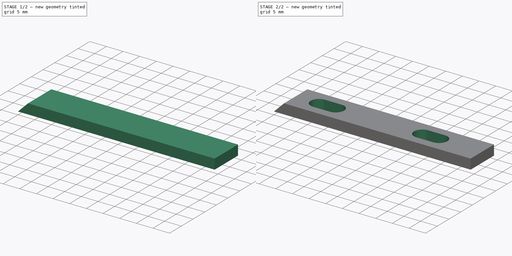
[diagram: build sequence overview — one tinted view per stage of 2, left to right]
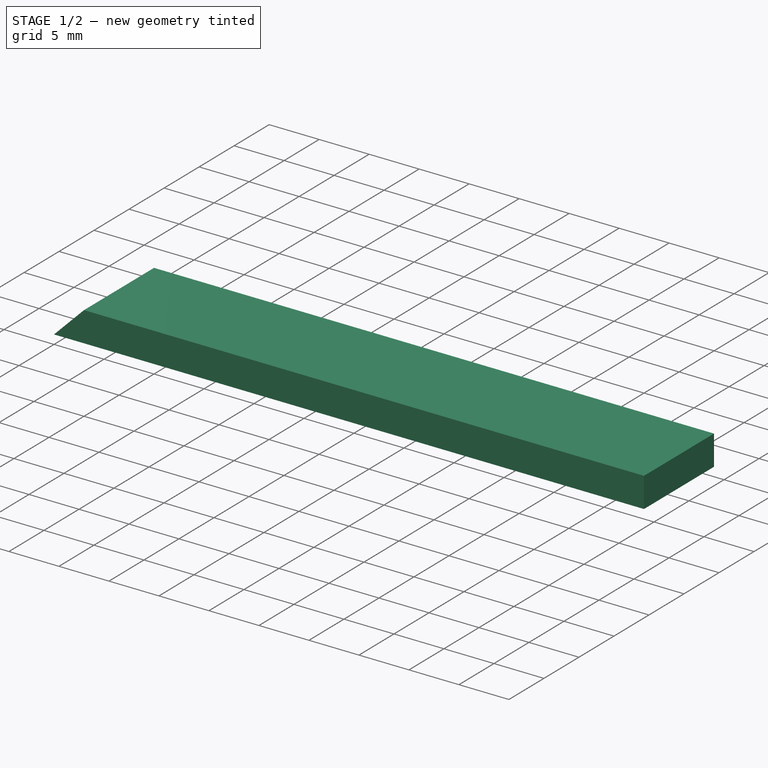
[diagram: stage 1 of 2 — iso view after this stage's code; geometry added in this stage tinted green]
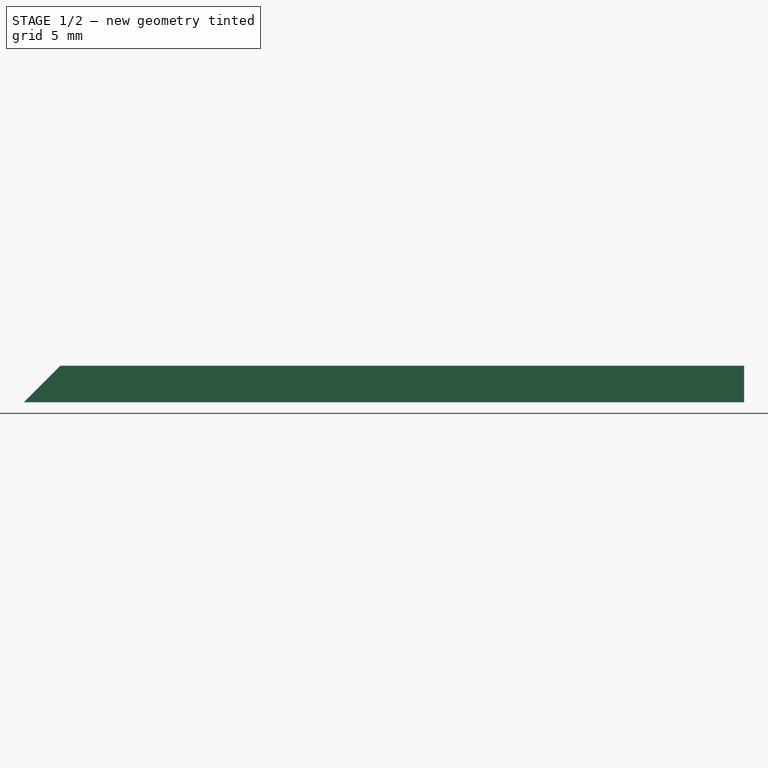
[diagram: stage 1 of 2 — front view after this stage's code; geometry added in this stage tinted green]
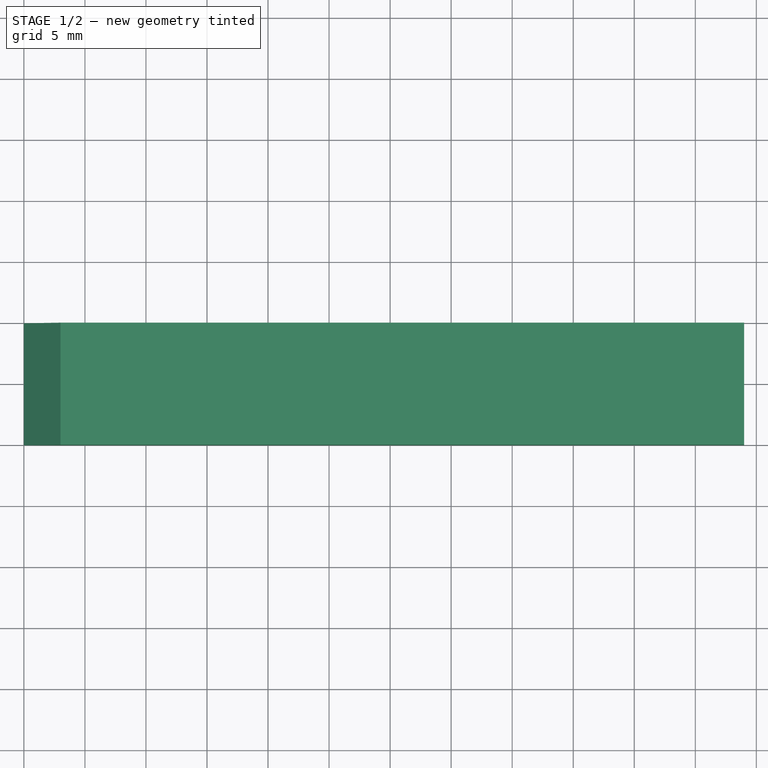
[diagram: stage 1 of 2 — top view after this stage's code; geometry added in this stage tinted green]
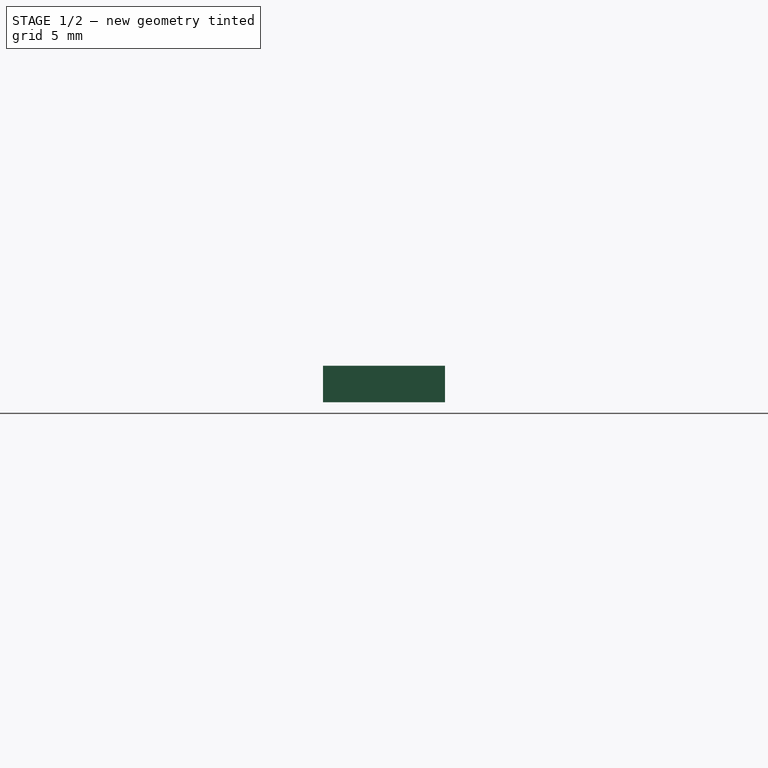
[diagram: stage 1 of 2 — right view after this stage's code; geometry added in this stage tinted green]
FCSTD DOCUMENT  (FreeCAD 0.19R24276 (Git))
Label: Nemo23_support_flour
License: All rights reserved
LicenseURL: http://en.wikipedia.org/wiki/All_rights_reserved
objects: Sketcher::SketchObject×3, PartDesign::Pocket×2, PartDesign::Pad×1, PartDesign::Body×1
note: 10 computed .brp shape members not serialized (recipe doc carries the construction recipe); baked Part::Feature solids carry a one-line shape summary decoded from their .brp

FEATURE [Sketcher::SketchObject] Sketch
  FullyConstrained = true
  MapMode = 5
  Support = -> [XY_Plane]
  sketch-geometry (4):
    g0: LineSegment StartX=5.94579e-10 StartY=10 StartZ=0 EndX=59 EndY=10 EndZ=0
    g1: LineSegment StartX=59 StartY=10 StartZ=0 EndX=59 EndY=0 EndZ=0
    g2: LineSegment StartX=59 StartY=0 StartZ=0 EndX=0 EndY=0 EndZ=0
    g3: LineSegment StartX=0 StartY=0 StartZ=0 EndX=5.94579e-10 EndY=10 EndZ=0
  constraints (11):
    c: Coincident(g0,g1)
    c: Coincident(g1,g2)
    c: Horizontal(g0)
    c: Horizontal(g2)
    c: Vertical(g1)
    c: Coincident(g2,g-1)
    c: DistanceY(g1,g1) = 10
    c: Coincident(g3,g2)
    c: Angle(g2,g3) = 1.5708
    c: Coincident(g0,g3)
    c: DistanceX(g2,g2) = 59
FEATURE [PartDesign::Pad] Pad
  Direction = (1,1,1)
  Length = 3
  Length2 = 100
  Profile = -> Sketch
  Type = 0
FEATURE [Sketcher::SketchObject] Sketch001
  FullyConstrained = true
  MapMode = 5
  Placement = pos=(0,0,0) rot=(1,0,0;1.5708rad)
  Support = -> [Pad]
  sketch-geometry (3):
    g0: LineSegment StartX=0 StartY=0 StartZ=0 EndX=3 EndY=3 EndZ=0
    g1: LineSegment StartX=0 StartY=0 StartZ=0 EndX=0 EndY=3 EndZ=0
    g2: LineSegment StartX=0 StartY=3 StartZ=0 EndX=3 EndY=3 EndZ=0
  constraints (8):
    c: Coincident(g0,g-1)
    c: Coincident(g1,g0)
    c: Horizontal(g2)
    c: Coincident(g0,g2)
    c: Coincident(g1,g2)
    c: DistanceY(g1,g1) = 3
    c: DistanceX(g2,g2) = 3
    c: Vertical(g1)
FEATURE [PartDesign::Pocket] Pocket
  BaseFeature = -> Pad
  Length = 5
  Length2 = 100
  Profile = -> Sketch001
  Type = 1
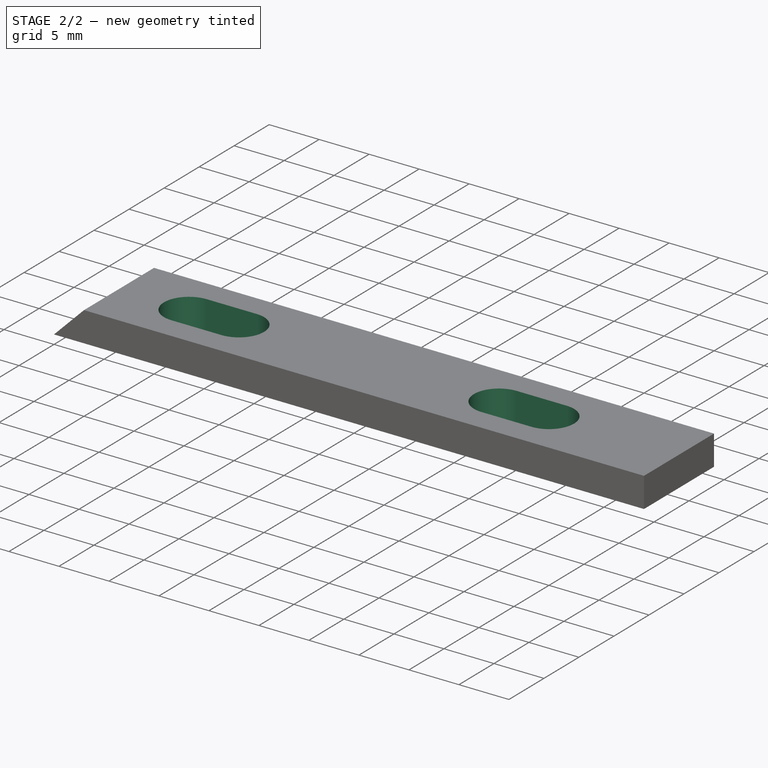
[diagram: stage 2 of 2 — iso view after this stage's code; geometry added in this stage tinted green]
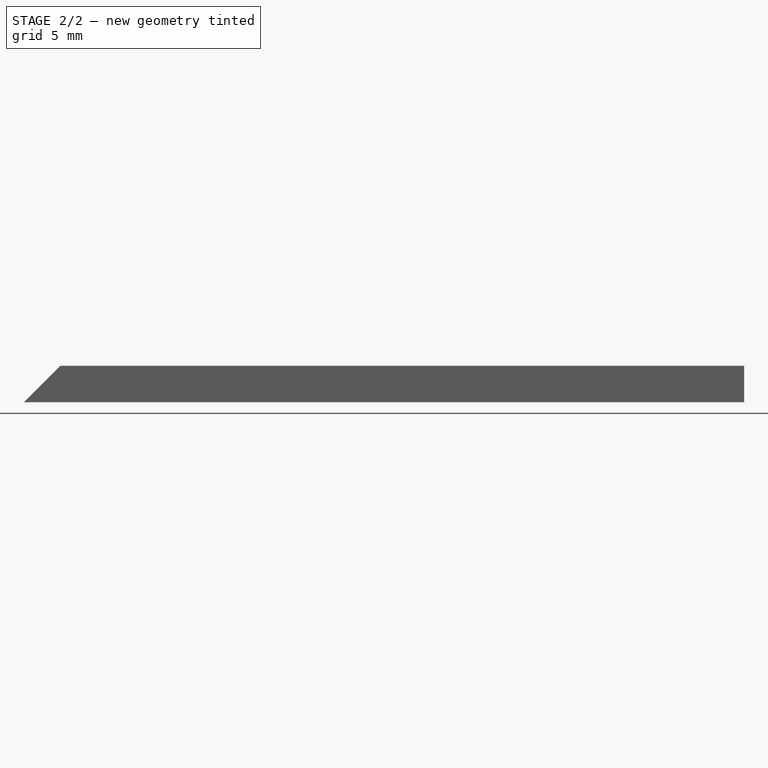
[diagram: stage 2 of 2 — front view after this stage's code; geometry added in this stage tinted green]
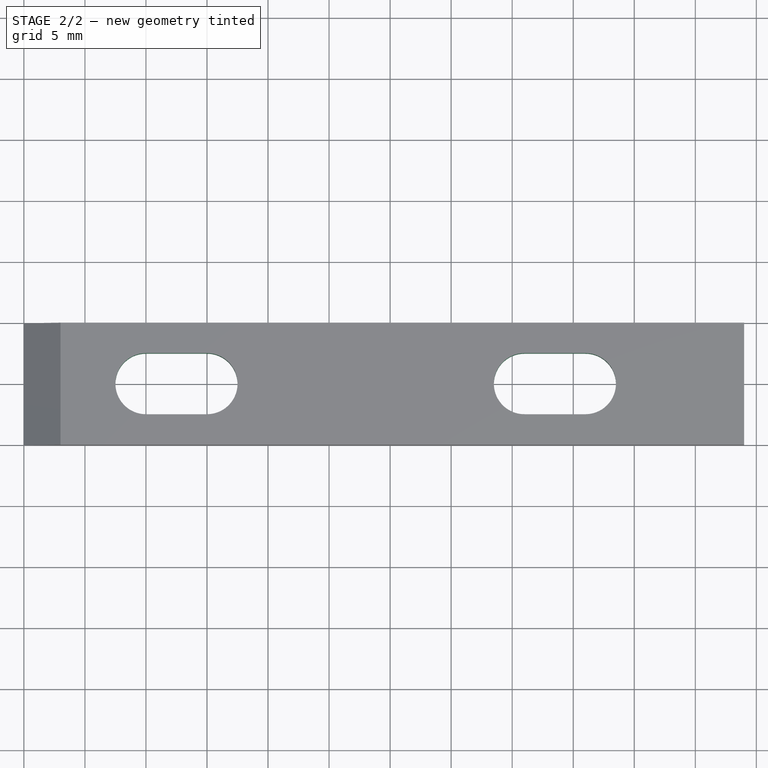
[diagram: stage 2 of 2 — top view after this stage's code; geometry added in this stage tinted green]
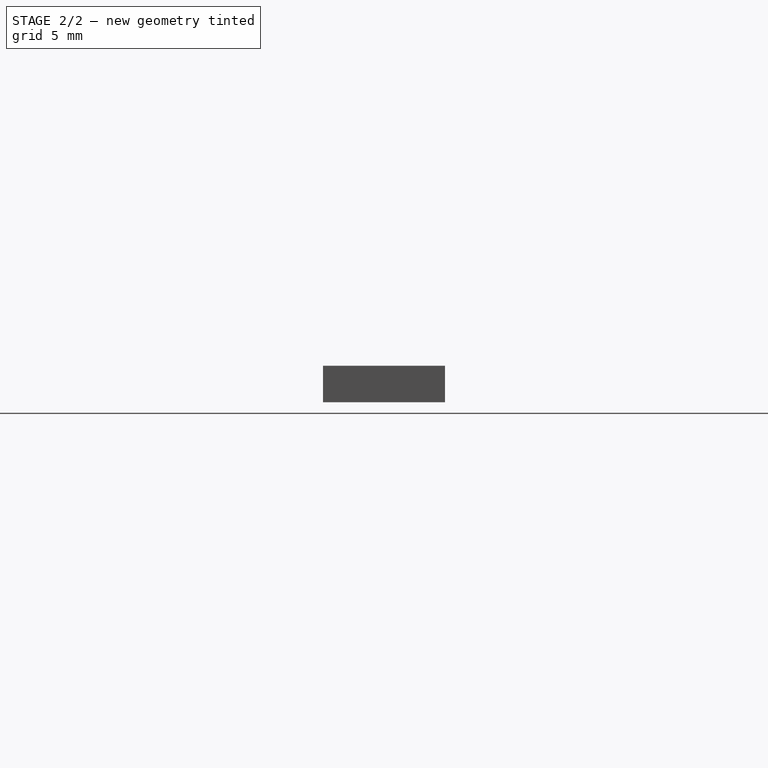
[diagram: stage 2 of 2 — right view after this stage's code; geometry added in this stage tinted green]
FEATURE [Sketcher::SketchObject] Sketch002
  FullyConstrained = false
  MapMode = 5
  Placement = pos=(0,0,3) rot=(0,0,1;0rad)
  Support = -> [Pocket]
  sketch-geometry (10):
    g0: ArcOfCircle CenterX=10 CenterY=5 CenterZ=0 NormalX=0 NormalY=0 NormalZ=1 AngleXU=0 Radius=2.5 StartAngle=1.5708 EndAngle=4.71239
    g1: ArcOfCircle CenterX=15 CenterY=5 CenterZ=0 NormalX=0 NormalY=0 NormalZ=1 AngleXU=0 Radius=2.5 StartAngle=4.71239 EndAngle=7.85398
    g2: LineSegment StartX=10 StartY=2.5 StartZ=0 EndX=15 EndY=2.5 EndZ=0
    g3: LineSegment StartX=10 StartY=7.5 StartZ=0 EndX=15 EndY=7.5 EndZ=0
    g4: LineSegment StartX=0 StartY=0 StartZ=0 EndX=28 EndY=0 EndZ=0
    g5: ArcOfCircle CenterX=46 CenterY=5 CenterZ=0 NormalX=0 NormalY=0 NormalZ=1 AngleXU=0 Radius=2.5 StartAngle=4.71239 EndAngle=7.85398
    g6: ArcOfCircle CenterX=41 CenterY=5 CenterZ=0 NormalX=0 NormalY=0 NormalZ=1 AngleXU=0 Radius=2.5 StartAngle=1.5708 EndAngle=4.71239
    g7: LineSegment StartX=46 StartY=2.5 StartZ=0 EndX=41 EndY=2.5 EndZ=0
    g8: LineSegment StartX=46 StartY=7.5 StartZ=0 EndX=41 EndY=7.5 EndZ=0
    g9: LineSegment StartX=0 StartY=0 StartZ=0 EndX=56 EndY=0 EndZ=0
  constraints (22):
    c: Tangent(g0,g3) = 1.5708
    c: Tangent(g0,g2) = -1.5708
    c: Tangent(g2,g1) = -1.5708
    c: Tangent(g3,g1) = 1.5708
    c: Horizontal(g2)
    c: Equal(g0,g1)
    c: DistanceY(g-1,g0) = 5
    c: DistanceX(g-1,g0) = 10
    c: DistanceX(g0,g1) = 5
    c: DistanceY(g1,g1) = 2.5
    c: Coincident(g4,g-1)
    c: PointOnObject(g4,g-1)
    c: DistanceX(g4,g4) = 28
    c: Tangent(g5,g8) = -1.5708
    c: Tangent(g5,g7) = 1.5708
    c: Tangent(g7,g6) = 1.5708
    c: Tangent(g8,g6) = -1.5708
    c: Horizontal(g7)
    c: Equal(g5,g6)
    c: Coincident(g9,g-1)
    c: PointOnObject(g9,g-1)
    c: DistanceX(g9,g9) = 56
FEATURE [PartDesign::Pocket] Pocket001
  BaseFeature = -> Pocket
  Length = 5
  Length2 = 100
  Profile = -> Sketch002
  Type = 1
FEATURE [PartDesign::Body] Body
  Group = -> [Sketch,Pad,Sketch001,Pocket,Sketch002,Pocket001]
  Origin = -> Origin
  Tip = -> Pocket001
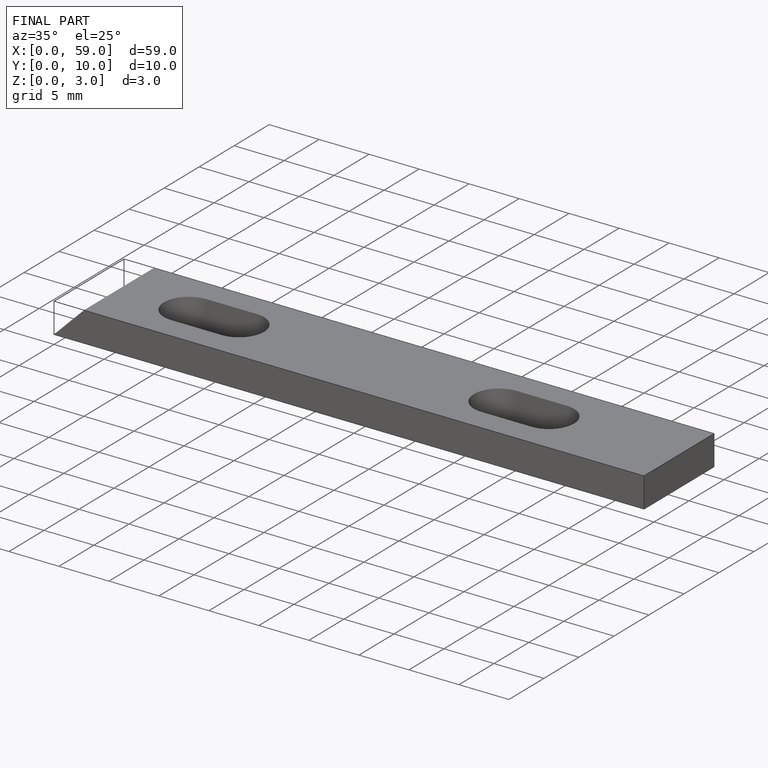
[diagram: finished part — iso view with bounding-box wireframe]
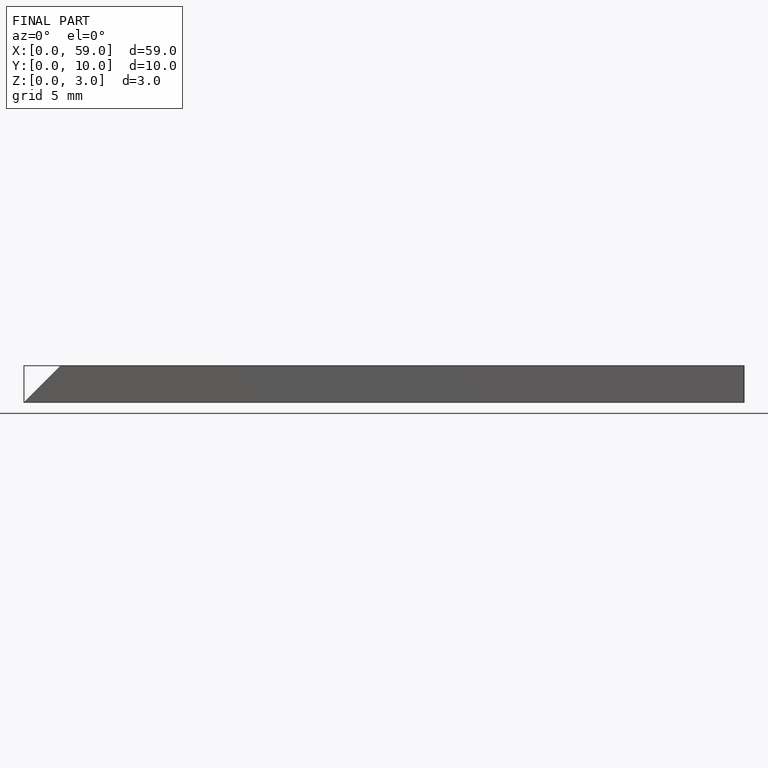
[diagram: finished part — front view with bounding-box wireframe]
